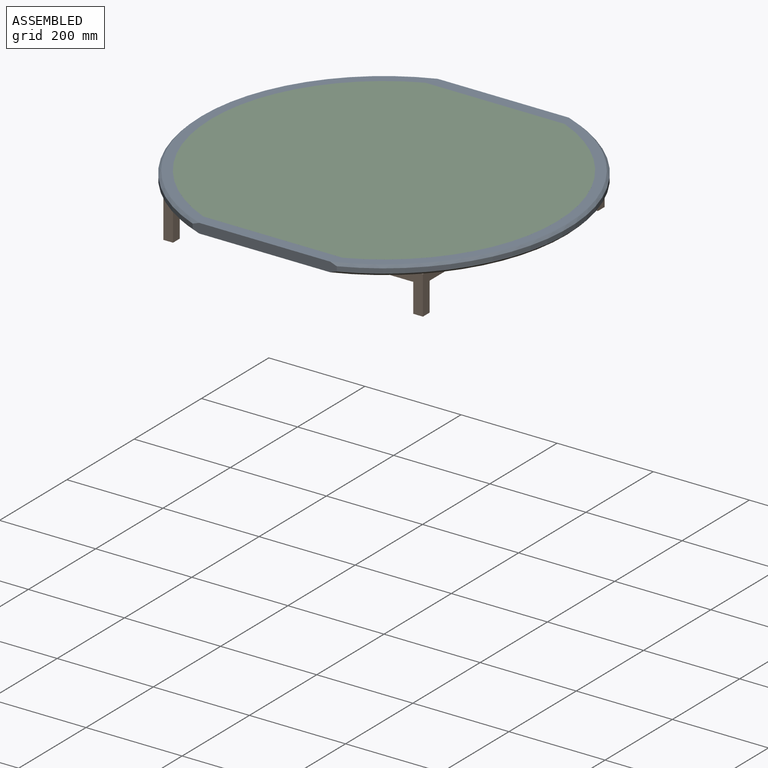
[diagram: assembled view]
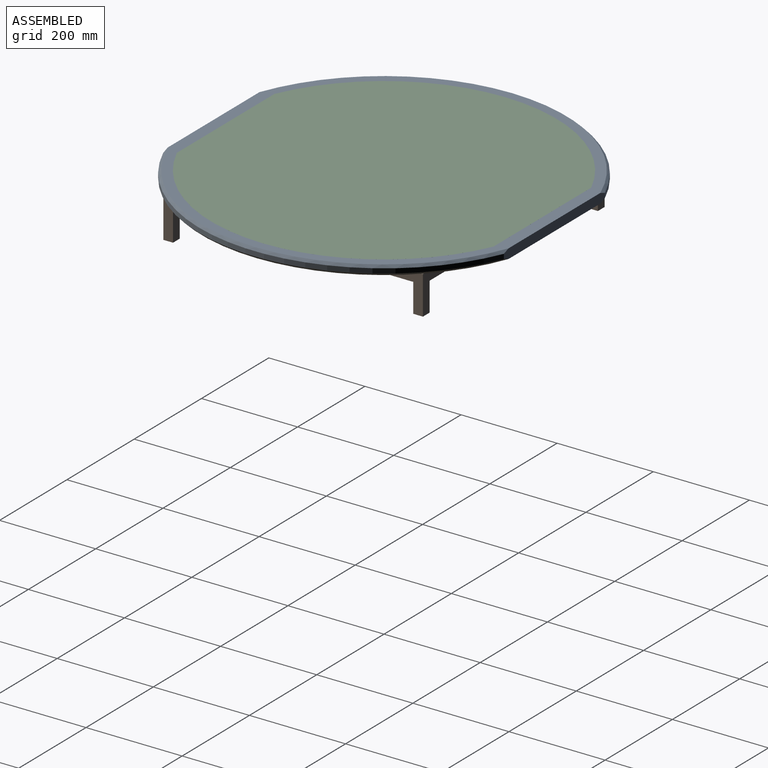
[diagram: assembled view, second angle]
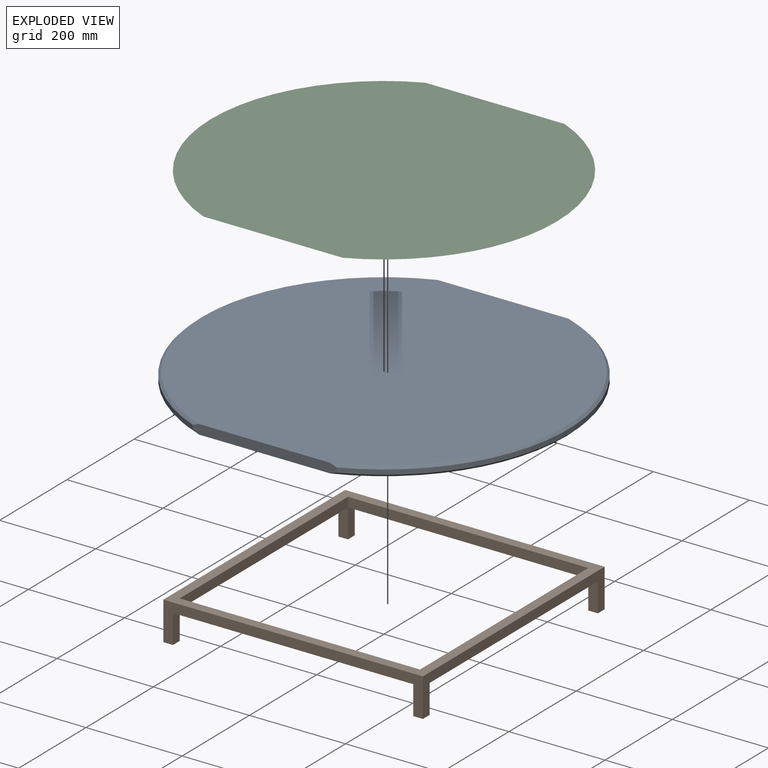
[diagram: exploded view]
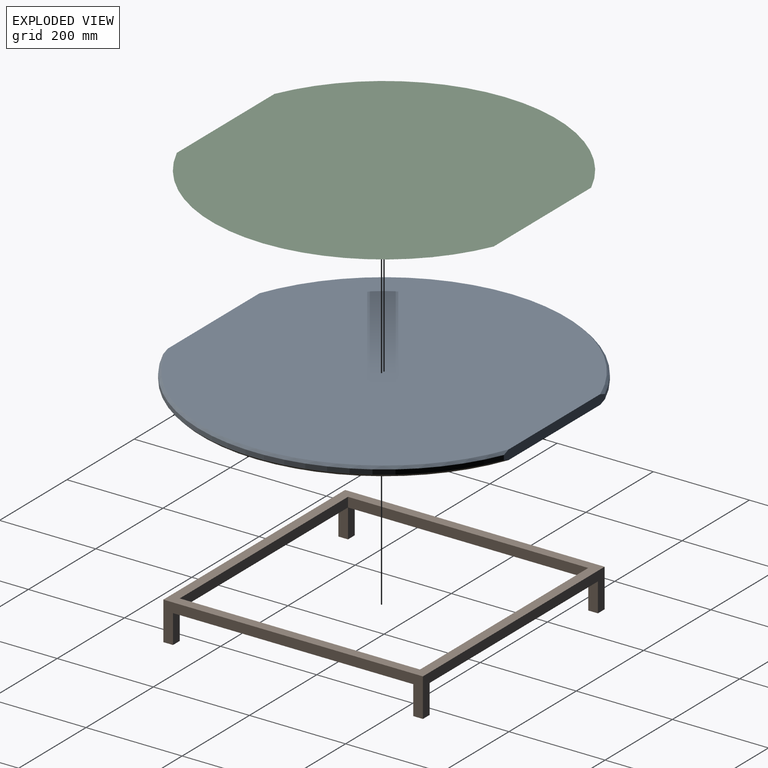
[diagram: exploded view, second angle]
ASSEMBLY  parts=3 mates=2
PART A: 10 faces, bbox 770x718.6x20 mm
  f0: plane 300x20mm, normal (0,1,0), area 5864mm2, adj f1,f3,f4,f5,f6,f7,f8,f9
  f1: cylinder r=385mm len=709.15mm, axis (0,0,-1), area 8869.3mm2, adj f0,f2,f6,f9
  f2: plane 300x20mm, normal (0,-1,0), area 5864mm2, adj f1,f3,f4,f5,f6,f7,f8,f9
  f3: cylinder r=385mm len=709.15mm, axis (0,0,-1), area 8869.3mm2, adj f0,f2,f7,f8
  f4: plane 759.84x709.15mm, normal (0,0,1), area 444171.4mm2, adj f0,f2,f8,f9
  f5: plane 759.84x709.15mm, normal (0,0,-1), area 444171.4mm2, adj f0,f2,f6,f7
  f6: cone r=385mm half-angle=45deg, axis (0,0,1), area 6521.3mm2, adj f0,f1,f2,f5
  f7: cone r=385mm half-angle=45deg, axis (0,0,1), area 6521.3mm2, adj f0,f2,f3,f5
  f8: cone r=379.92mm half-angle=45deg, axis (0,0,-1), area 6521.3mm2, adj f0,f2,f3,f4
  f9: cone r=379.92mm half-angle=45deg, axis (0,0,-1), area 6521.3mm2, adj f0,f1,f2,f4
PART B: 31 faces, bbox 540x540x80 mm
  f0: plane 500x20mm, normal (0,0,-1), area 9999.9mm2, adj f4,f8,f24,f27
  f1: plane 500x20mm, normal (0,0,-1), area 10000mm2, adj f5,f7,f14,f29
  f2: plane 500x20mm, normal (0,0,-1), area 10000mm2, adj f9,f11,f18,f25
  f3: plane 500x20mm, normal (0,0,-1), area 10000mm2, adj f6,f10,f13,f19
  f4: plane 540x20mm, normal (0,1,0), area 10800mm2, adj f0,f5,f11,f12,f23,f28
  f5: plane 540x80mm, normal (-1,0,0), area 12000mm2, adj f1,f4,f6,f12,f15,f28,f29,f30
  f6: plane 540x80mm, normal (0,-1,0), area 12000mm2, adj f3,f5,f11,f12,f13,f15,f16,f20
  f7: plane 500x20mm, normal (1,0,0), area 10000mm2, adj f1,f8,f10,f12
  f8: plane 500x20mm, normal (0,-1,0), area 10000mm2, adj f0,f7,f9,f12
  f9: plane 500x20mm, normal (-1,0,0), area 10000mm2, adj f2,f8,f10,f12
  f10: plane 500x20mm, normal (0,1,0), area 10000mm2, adj f3,f7,f9,f12
  f11: plane 540x20mm, normal (1,0,0), area 10800mm2, adj f2,f4,f6,f12,f17,f22
  f12: plane 540x540mm, normal (0,0,1), area 41600mm2, adj f4,f5,f6,f7,f8,f9,f10,f11
  f13: plane 60x20mm, normal (1,0,0), area 1200mm2, adj f3,f6,f14,f16
  f14: plane 60x20mm, normal (0,1,0), area 1200mm2, adj f1,f13,f15,f16
  f15: plane 60x20mm, normal (-1,0,0), area 1200mm2, adj f5,f6,f14,f16
  f16: plane 20x20mm, normal (0,0,-1), area 400mm2, adj f6,f13,f14,f15
  f17: plane 60x20mm, normal (1,0,0), area 1200mm2, adj f11,f18,f20,f21
  f18: plane 60x20mm, normal (0,1,0), area 1200mm2, adj f2,f17,f19,f21
  f19: plane 60x20mm, normal (-1,0,0), area 1200mm2, adj f3,f18,f20,f21
  f20: plane 60x20mm, normal (0,-1,0), area 1200mm2, adj f6,f17,f19,f21
  f21: plane 20x20mm, normal (0,0,-1), area 400mm2, adj f17,f18,f19,f20
  f22: plane 60x20mm, normal (1,0,0), area 1200mm2, adj f11,f23,f25,f26
  f23: plane 60x20mm, normal (0,1,0), area 1200mm2, adj f4,f22,f24,f26
  f24: plane 60x20mm, normal (-1,0,0), area 1200mm2, adj f0,f23,f25,f26
  f25: plane 60x20mm, normal (0,-1,0), area 1200mm2, adj f2,f22,f24,f26
  f26: plane 20x20mm, normal (0,0,-1), area 400mm2, adj f22,f23,f24,f25
  f27: plane 60x20mm, normal (1,0,0), area 1200mm2, adj f0,f28,f29,f30
  f28: plane 60x20mm, normal (0,1,0), area 1200mm2, adj f4,f5,f27,f30
  f29: plane 60x20mm, normal (0,-1,0), area 1200mm2, adj f1,f5,f27,f30
  f30: plane 20x20mm, normal (0,0,-1), area 400mm2, adj f5,f27,f28,f29
PART C: 6 faces, bbox 720x659x0 mm
  f0: plane 290x0.01mm, normal (0,1,0), area 2.9mm2, adj f1,f3,f4,f5
  f1: cylinder r=360mm len=659.01mm, axis (0,0,-1), area 8.3mm2, adj f0,f2,f4,f5
  f2: plane 290x0.01mm, normal (0,-1,0), area 2.9mm2, adj f1,f3,f4,f5
  f3: cylinder r=360mm len=659.01mm, axis (0,0,-1), area 8.3mm2, adj f0,f2,f4,f5
  f4: plane 720x659.01mm, normal (0,0,1), area 395256.2mm2, adj f0,f1,f2,f3
  f5: plane 720x659.01mm, normal (0,0,-1), area 395256.2mm2, adj f0,f1,f2,f3
PLACE A at identity
PLACE B t=(0,0,-20)mm
PLACE C t=(0,0,20)mm
MATE fastened C.f1 <-> A.f1  axis (0,0,-1) through (0,0,20)mm
MATE fastened B.f12 <-> A.f3  axis (0,0,1) through (0,0,0)mm
